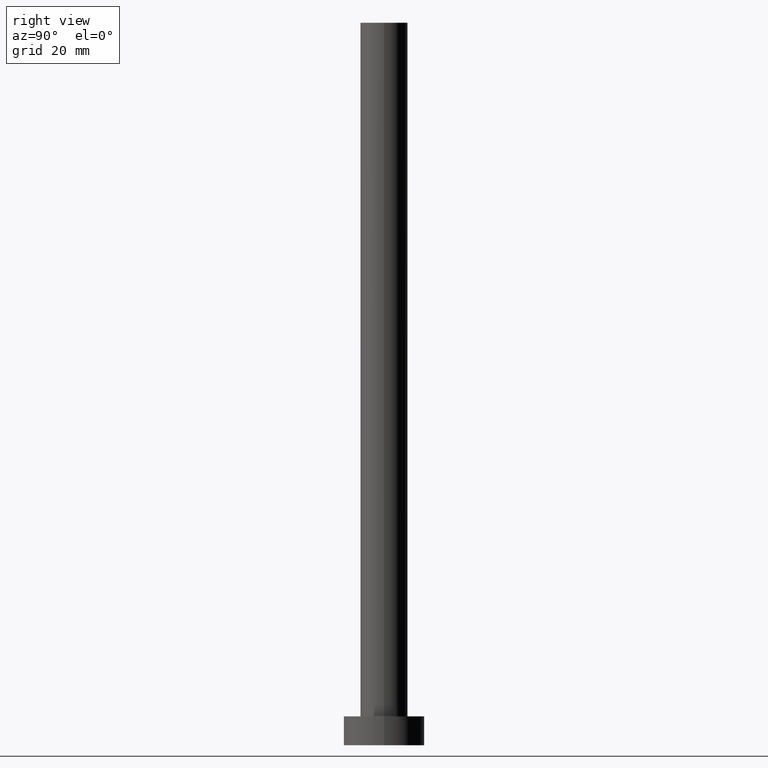
[diagram: clean part render]
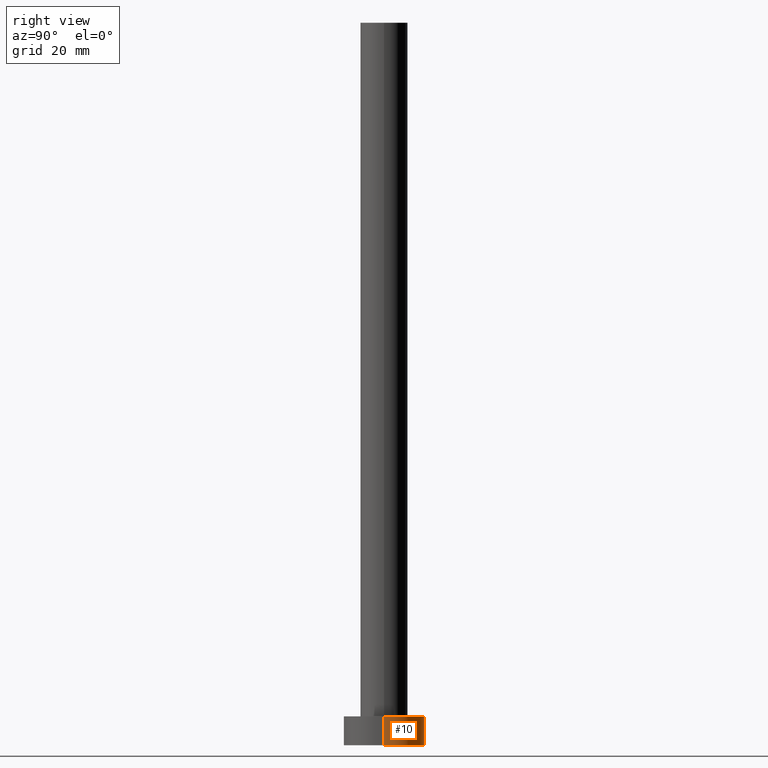
[diagram: same view with one face highlighted and labeled with its STEP entity id]
A machine part, right view. The second image highlights one B-rep face of the part: STEP entity #10.
In plain terms, the highlighted cylindrical surface (partial cylindrical patch) has radius 7 mm, axis along (-0, -0, -1).
Its self-contained STEP definition (entity closure, byte-faithful):
#10 = ADVANCED_FACE ( 'NONE', ( #160 ), #117, .T. ) ;
#19 = VERTEX_POINT ( 'NONE', #199 ) ;
#24 = DIRECTION ( 'NONE',  ( 0.000000000000000000, 0.000000000000000000, 1.000000000000000000 ) ) ;
#38 = VERTEX_POINT ( 'NONE', #213 ) ;
#47 = EDGE_CURVE ( 'NONE', #38, #240, #216, .T. ) ;
#48 = AXIS2_PLACEMENT_3D ( 'NONE', #96, #169, #204 ) ;
#53 = ORIENTED_EDGE ( 'NONE', *, *, #127, .F. ) ;
#57 = EDGE_CURVE ( 'NONE', #19, #72, #245, .T. ) ;
#68 = DIRECTION ( 'NONE',  ( -1.000000000000000000, 0.000000000000000000, 0.000000000000000000 ) ) ;
#72 = VERTEX_POINT ( 'NONE', #104 ) ;
#73 = ORIENTED_EDGE ( 'NONE', *, *, #57, .T. ) ;
#89 = AXIS2_PLACEMENT_3D ( 'NONE', #136, #179, #68 ) ;
#90 = EDGE_LOOP ( 'NONE', ( #53, #73, #239, #122 ) ) ;
#96 = CARTESIAN_POINT ( 'NONE',  ( 0.000000000000000000, 0.000000000000000000, 5.000000000000000000 ) ) ;
#99 = DIRECTION ( 'NONE',  ( 1.000000000000000000, 0.000000000000000000, 0.000000000000000000 ) ) ;
#103 = VECTOR ( 'NONE', #146, 1000.000000000000000 ) ;
#104 = CARTESIAN_POINT ( 'NONE',  ( 7.000000000000000000, 8.572527594031473190E-16, 0.000000000000000000 ) ) ;
#108 = VECTOR ( 'NONE', #188, 1000.000000000000000 ) ;
#117 = CYLINDRICAL_SURFACE ( 'NONE', #89, 7.000000000000000000 ) ;
#122 = ORIENTED_EDGE ( 'NONE', *, *, #47, .F. ) ;
#127 = EDGE_CURVE ( 'NONE', #19, #38, #139, .T. ) ;
#136 = CARTESIAN_POINT ( 'NONE',  ( 0.000000000000000000, 0.000000000000000000, 5.000000000000000000 ) ) ;
#139 = CIRCLE ( 'NONE', #48, 7.000000000000000000 ) ;
#144 = CARTESIAN_POINT ( 'NONE',  ( 0.000000000000000000, 0.000000000000000000, 0.000000000000000000 ) ) ;
#146 = DIRECTION ( 'NONE',  ( -0.000000000000000000, -0.000000000000000000, -1.000000000000000000 ) ) ;
#160 = FACE_OUTER_BOUND ( 'NONE', #90, .T. ) ;
#168 = CARTESIAN_POINT ( 'NONE',  ( 7.000000000000000000, 8.572527594031473190E-16, 5.000000000000000000 ) ) ;
#169 = DIRECTION ( 'NONE',  ( 0.000000000000000000, 0.000000000000000000, 1.000000000000000000 ) ) ;
#179 = DIRECTION ( 'NONE',  ( -0.000000000000000000, -0.000000000000000000, -1.000000000000000000 ) ) ;
#188 = DIRECTION ( 'NONE',  ( -0.000000000000000000, -0.000000000000000000, -1.000000000000000000 ) ) ;
#199 = CARTESIAN_POINT ( 'NONE',  ( 7.000000000000000000, 8.572527594031473190E-16, 5.000000000000000000 ) ) ;
#201 = CARTESIAN_POINT ( 'NONE',  ( -7.000000000000000000, 0.000000000000000000, 5.000000000000000000 ) ) ;
#202 = CIRCLE ( 'NONE', #251, 7.000000000000000000 ) ;
#204 = DIRECTION ( 'NONE',  ( 1.000000000000000000, 0.000000000000000000, 0.000000000000000000 ) ) ;
#213 = CARTESIAN_POINT ( 'NONE',  ( -7.000000000000000000, 0.000000000000000000, 5.000000000000000000 ) ) ;
#216 = LINE ( 'NONE', #201, #108 ) ;
#224 = EDGE_CURVE ( 'NONE', #72, #240, #202, .T. ) ;
#239 = ORIENTED_EDGE ( 'NONE', *, *, #224, .T. ) ;
#240 = VERTEX_POINT ( 'NONE', #255 ) ;
#245 = LINE ( 'NONE', #168, #103 ) ;
#251 = AXIS2_PLACEMENT_3D ( 'NONE', #144, #24, #99 ) ;
#255 = CARTESIAN_POINT ( 'NONE',  ( -7.000000000000000000, 0.000000000000000000, 0.000000000000000000 ) ) ;